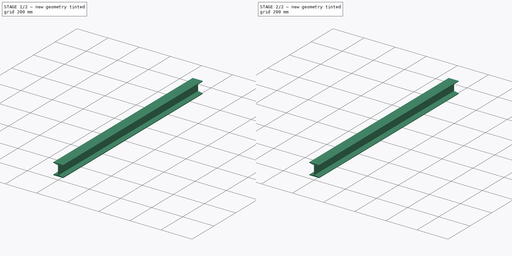
[diagram: build sequence overview — one tinted view per stage of 2, left to right]
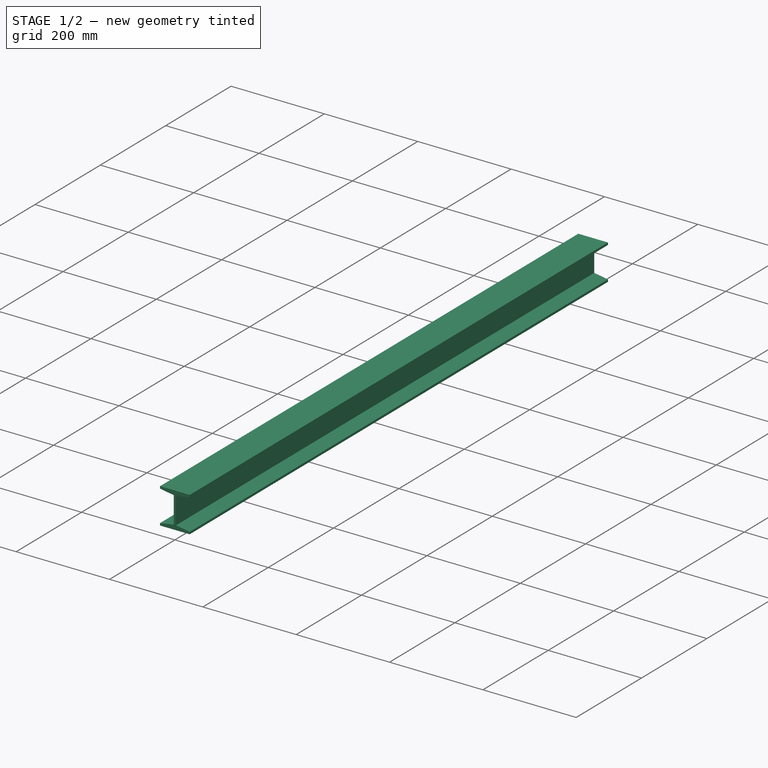
[diagram: stage 1 of 2 — iso view after this stage's code; geometry added in this stage tinted green]
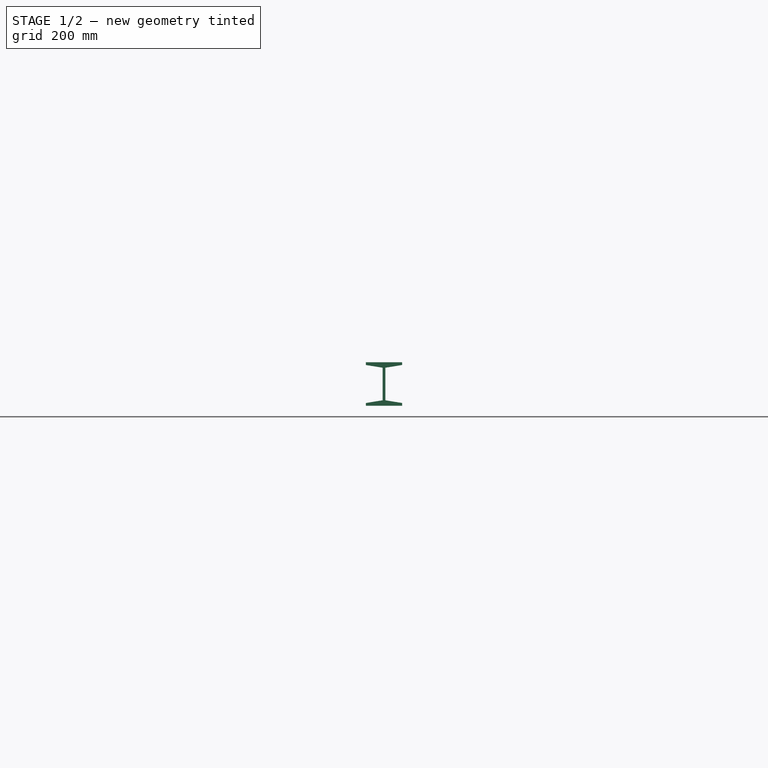
[diagram: stage 1 of 2 — front view after this stage's code; geometry added in this stage tinted green]
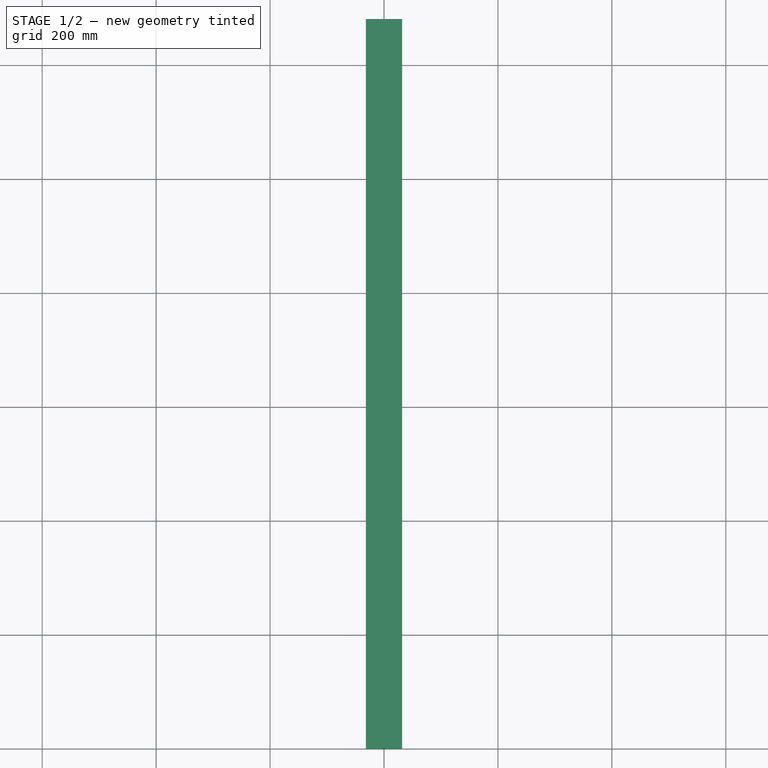
[diagram: stage 1 of 2 — top view after this stage's code; geometry added in this stage tinted green]
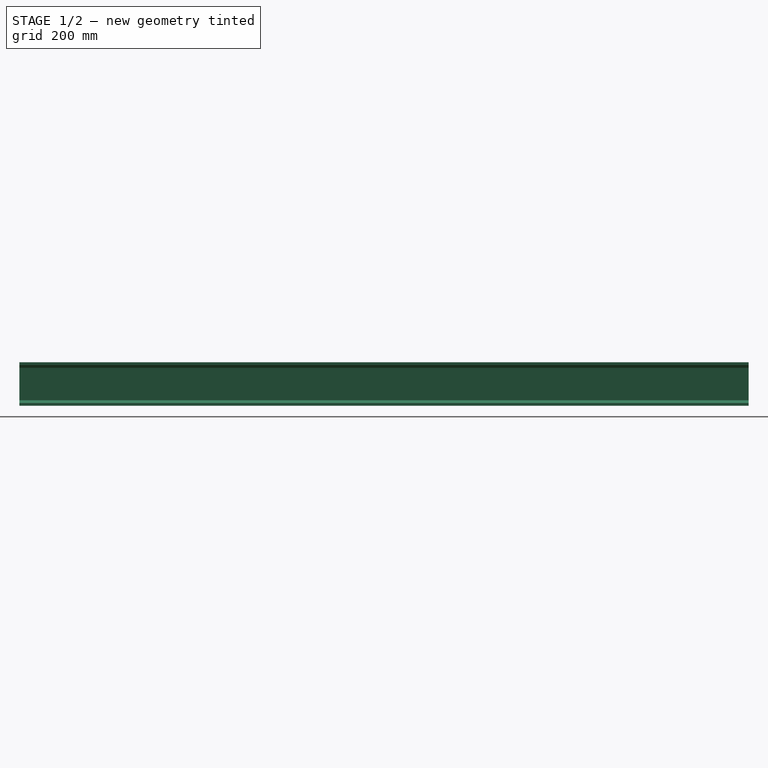
[diagram: stage 1 of 2 — right view after this stage's code; geometry added in this stage tinted green]
FCSTD DOCUMENT  (FreeCAD 0.18.4R)
Label: sp_vigaIPS3(128cm)(cut90)
License: All rights reserved
LicenseURL: http://en.wikipedia.org/wiki/All_rights_reserved
objects: App::MeasureDistance×2, Sketcher::SketchObject×1, Part::Extrusion×1, Part::Fillet×1
note: 3 computed .brp shape members not serialized (recipe doc carries the construction recipe); baked Part::Feature solids carry a one-line shape summary decoded from their .brp

FEATURE [Sketcher::SketchObject] Sketch
  Placement = pos=(0,0,0) rot=(1,0,0;1.5708rad)
  sketch-geometry (12):
    g0: LineSegment StartX=-31.75 StartY=38.1 StartZ=0 EndX=31.75 EndY=38.1 EndZ=0
    g1: LineSegment StartX=31.75 StartY=38.1 StartZ=0 EndX=31.75 EndY=33.3375 EndZ=0
    g2: LineSegment StartX=31.75 StartY=33.3375 StartZ=0 EndX=2.38125 EndY=28.575 EndZ=0
    g3: LineSegment StartX=2.38125 StartY=28.575 StartZ=0 EndX=2.38125 EndY=-28.575 EndZ=0
    g4: LineSegment StartX=2.38125 StartY=-28.575 StartZ=0 EndX=31.75 EndY=-33.3375 EndZ=0
    g5: LineSegment StartX=31.75 StartY=-33.3375 StartZ=0 EndX=31.75 EndY=-38.1 EndZ=0
    g6: LineSegment StartX=31.75 StartY=-38.1 StartZ=0 EndX=-31.75 EndY=-38.1 EndZ=0
    g7: LineSegment StartX=-31.75 StartY=-38.1 StartZ=0 EndX=-31.75 EndY=-33.3375 EndZ=0
    g8: LineSegment StartX=-31.75 StartY=-33.3375 StartZ=0 EndX=-2.38125 EndY=-28.575 EndZ=0
    g9: LineSegment StartX=-2.38125 StartY=-28.575 StartZ=0 EndX=-2.38125 EndY=28.575 EndZ=0
    g10: LineSegment StartX=-2.38125 StartY=28.575 StartZ=0 EndX=-31.75 EndY=33.3375 EndZ=0
    g11: LineSegment StartX=-31.75 StartY=33.3375 StartZ=0 EndX=-31.75 EndY=38.1 EndZ=0
  constraints (34):
    c: Horizontal(g0)
    c: Coincident(g0,g1)
    c: Coincident(g1,g2)
    c: Coincident(g2,g3)
    c: Coincident(g3,g4)
    c: Coincident(g4,g5)
    c: Coincident(g5,g6)
    c: Coincident(g6,g7)
    c: Coincident(g7,g8)
    c: Coincident(g8,g9)
    c: Coincident(g9,g10)
    c: Coincident(g10,g11)
    c: Coincident(g11,g0)
    c: Vertical(g9)
    c: Vertical(g3)
    c: Vertical(g5)
    c: Vertical(g7)
    c: Vertical(g11)
    c: Vertical(g1)
    c: Equal(g0,g6)
    c: Equal(g3,g9)
    c: Equal(g1,g11)
    c: Equal(g11,g7)
    c: Equal(g7,g5)
    c: Equal(g4,g2)
    c: Equal(g2,g10)
    c: Equal(g10,g8)
    c: DistanceY(g6,g0) = 76.2
    c: Symmetric(g1,g4,g-1)
    c: Symmetric(g2,g9,g-2)
    c: DistanceX(g0,g0) = 63.5
    c: DistanceY(g5,g4) = 4.7625
    c: DistanceX(g8,g3) = 4.7625
    c: DistanceY(g5,g3) = 9.525
FEATURE [App::MeasureDistance] Distance  label="anchoViga"
  Distance = 63.5
  P1 = (-31.75,-4.54187e-06,38.1)
  P2 = (31.75,-4.54187e-06,38.1)
FEATURE [App::MeasureDistance] Distance001  label="altoViga"
  Distance = 76.2
  P1 = (-31.7475,-4.54187e-06,38.1)
  P2 = (-31.75,4.54187e-06,-38.1)
FEATURE [Part::Extrusion] Extrude  label="extrude"
  Base = -> Sketch
  Dir = (0,-1,0)
  DirMode = 2
  FaceMakerClass = Part::FaceMakerBullseye
  LengthFwd = 1280
  LengthRev = 0
  Reversed = true
  Solid = true
  Symmetric = false
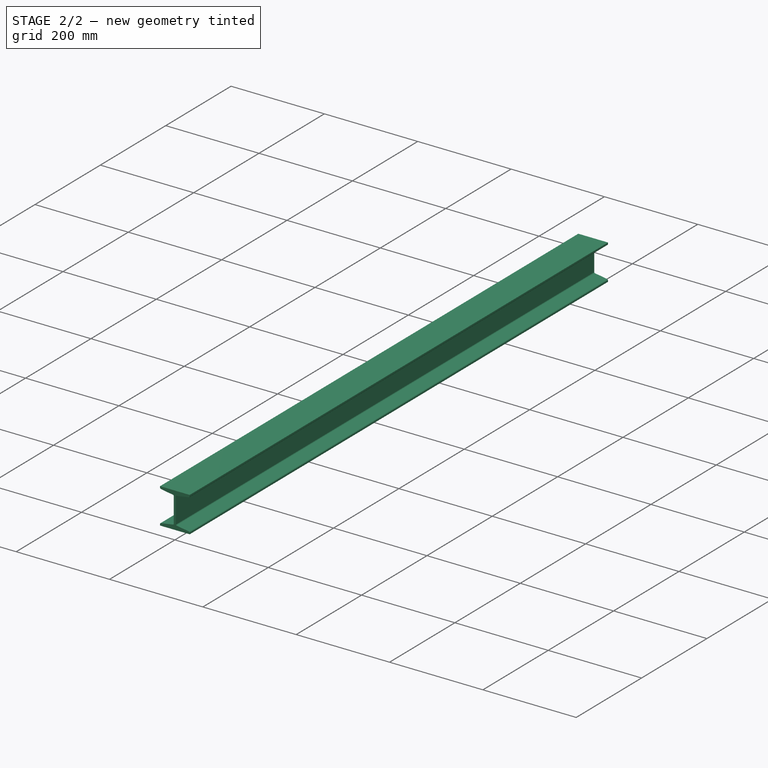
[diagram: stage 2 of 2 — iso view after this stage's code; geometry added in this stage tinted green]
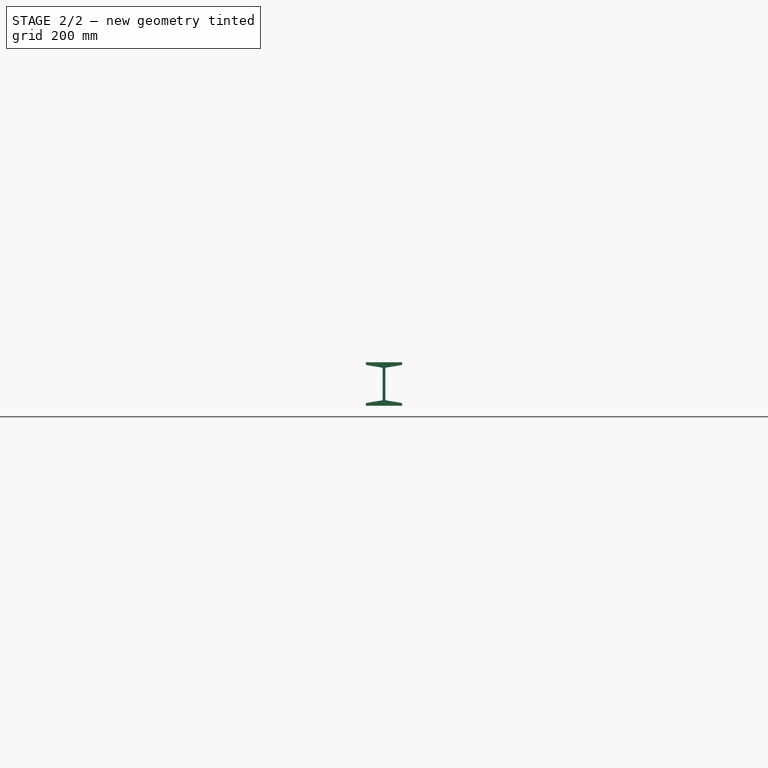
[diagram: stage 2 of 2 — front view after this stage's code; geometry added in this stage tinted green]
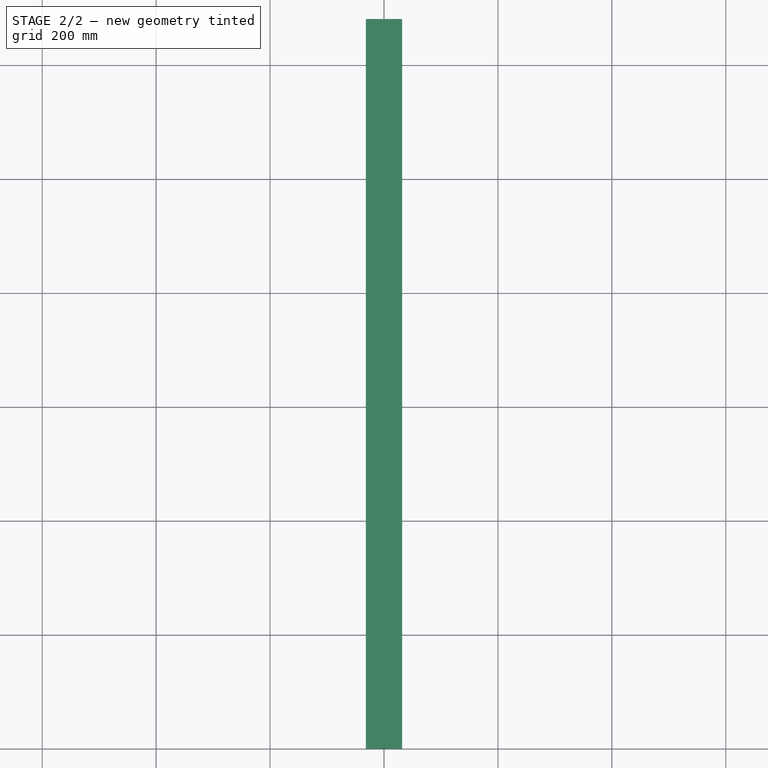
[diagram: stage 2 of 2 — top view after this stage's code; geometry added in this stage tinted green]
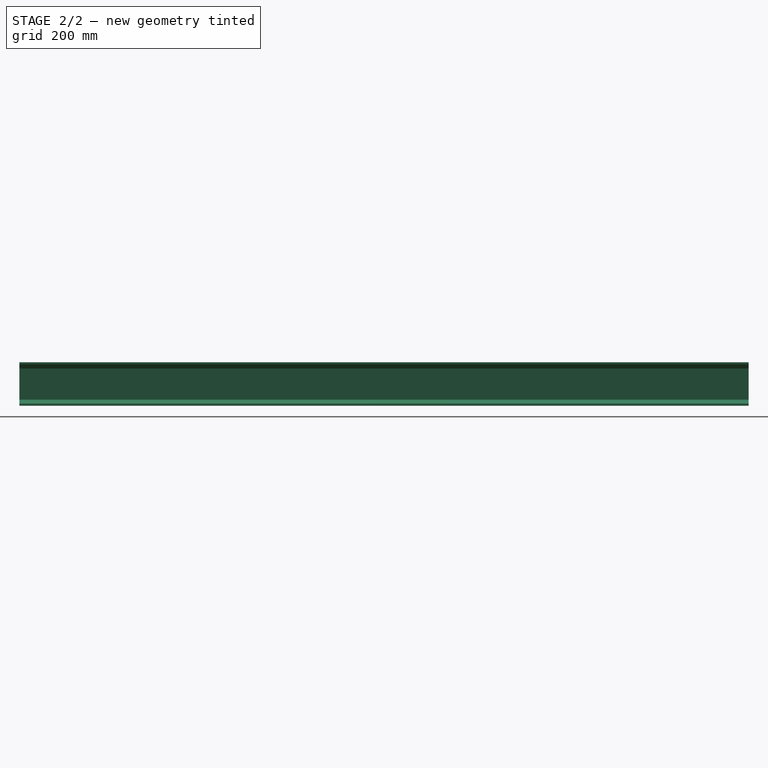
[diagram: stage 2 of 2 — right view after this stage's code; geometry added in this stage tinted green]
FEATURE [Part::Fillet] Fillet  label="sp_ips3(128cm)"
  Base = -> Extrude
  Edges = 8 edges r=2: [Edge5,Edge8,Edge11,Edge14,Edge23,Edge26,Edge29,Edge32]
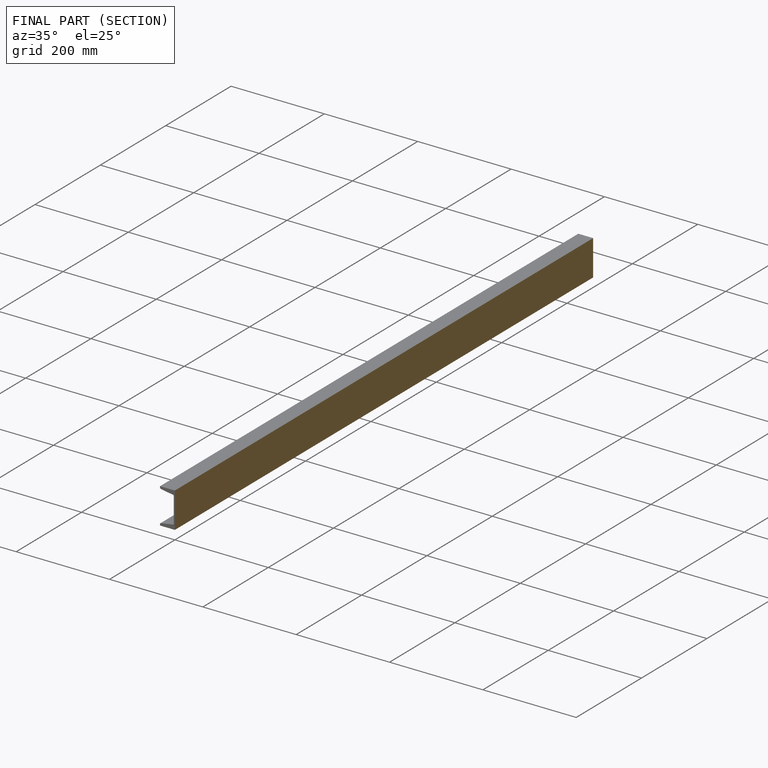
[diagram: finished part — half-section view (interior)]
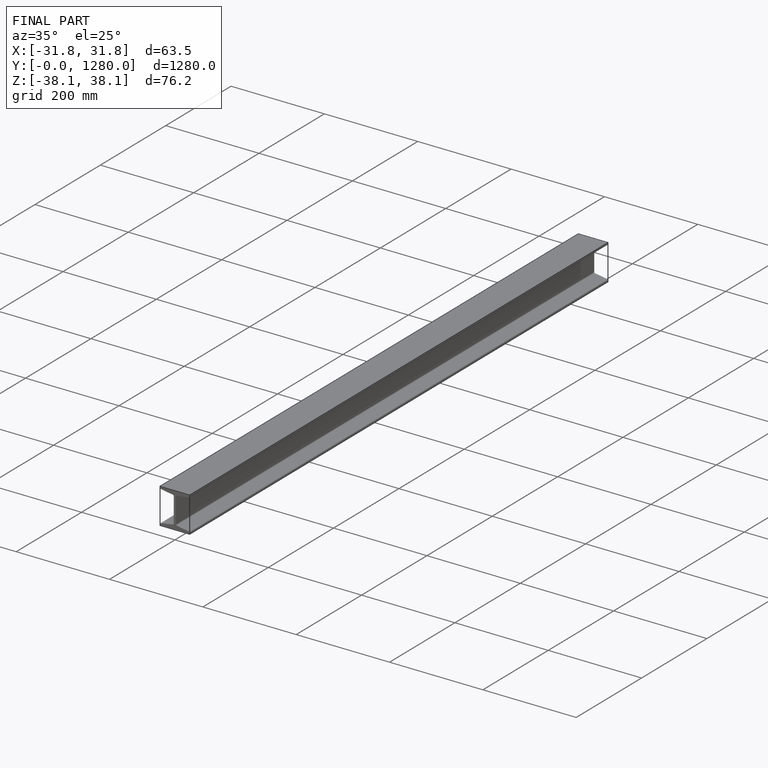
[diagram: finished part — iso view with bounding-box wireframe]
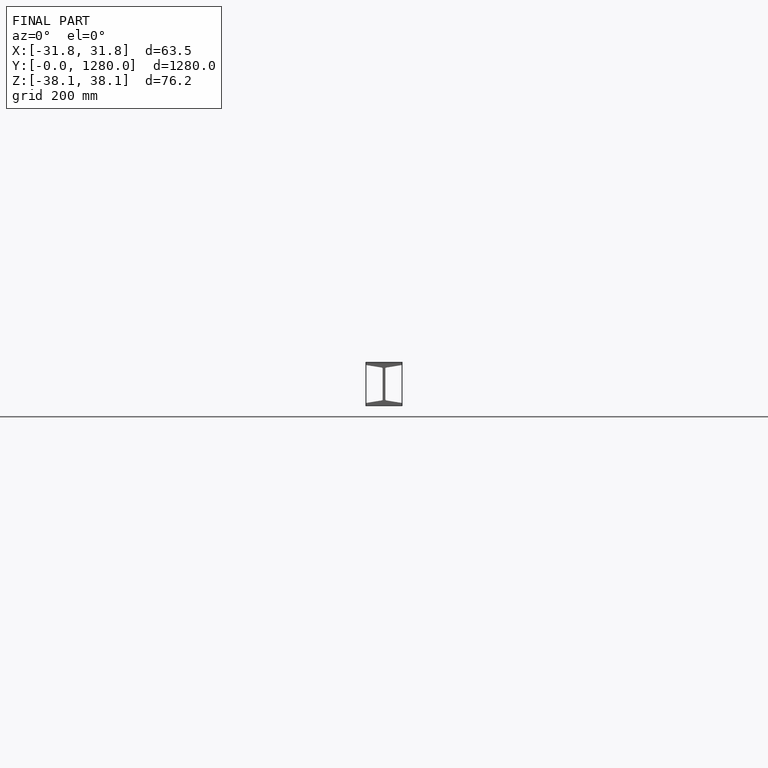
[diagram: finished part — front view with bounding-box wireframe]
